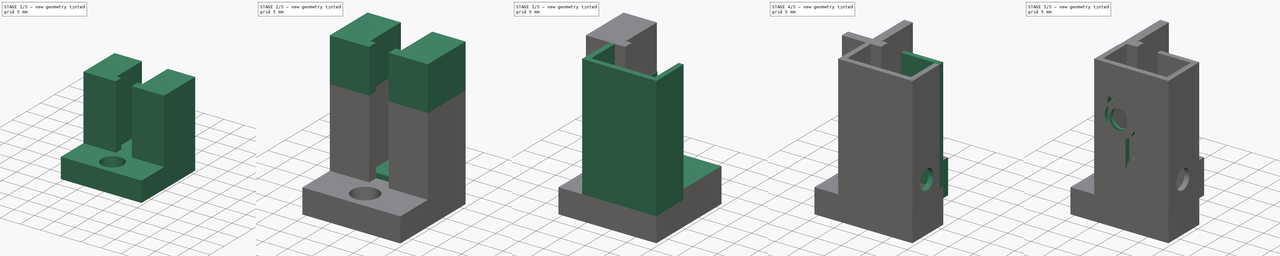
[diagram: build sequence overview — one tinted view per stage of 5, left to right]
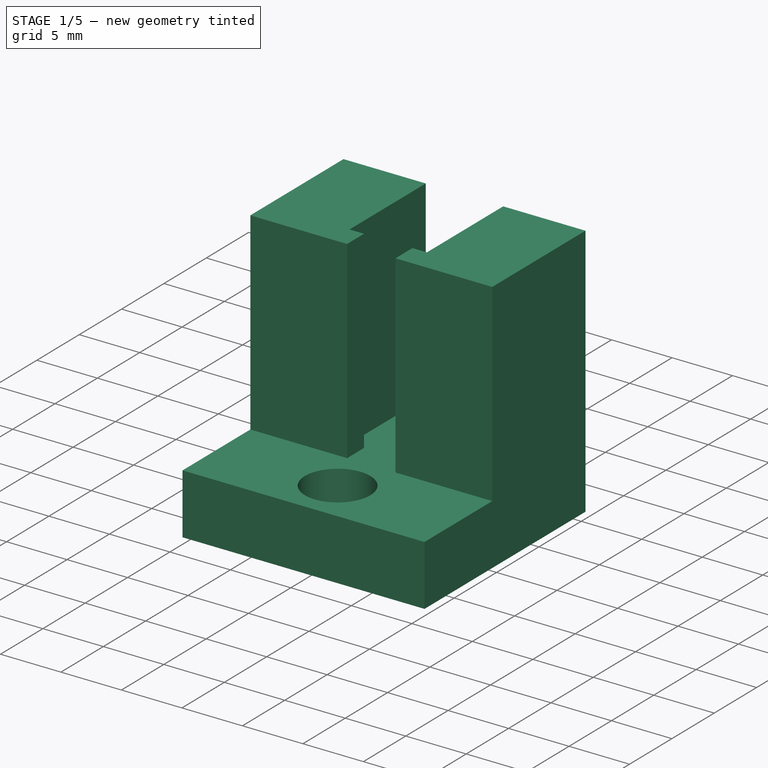
[diagram: stage 1 of 5 — iso view after this stage's code; geometry added in this stage tinted green]
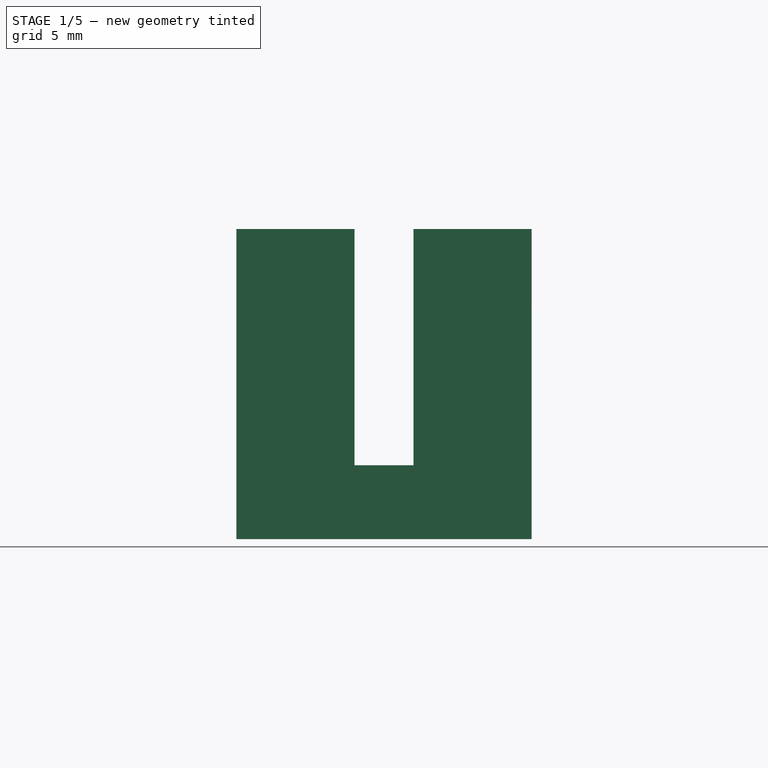
[diagram: stage 1 of 5 — front view after this stage's code; geometry added in this stage tinted green]
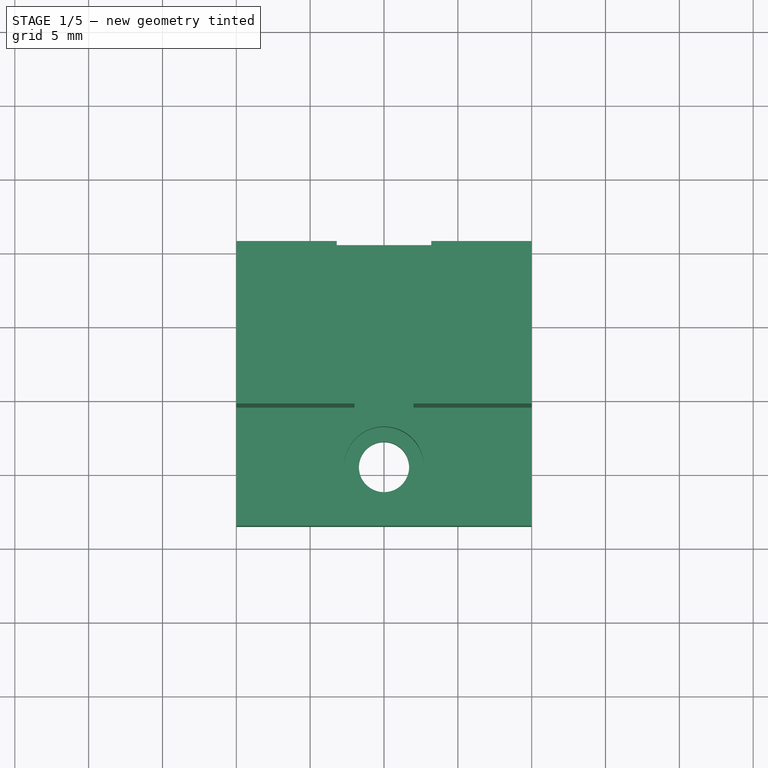
[diagram: stage 1 of 5 — top view after this stage's code; geometry added in this stage tinted green]
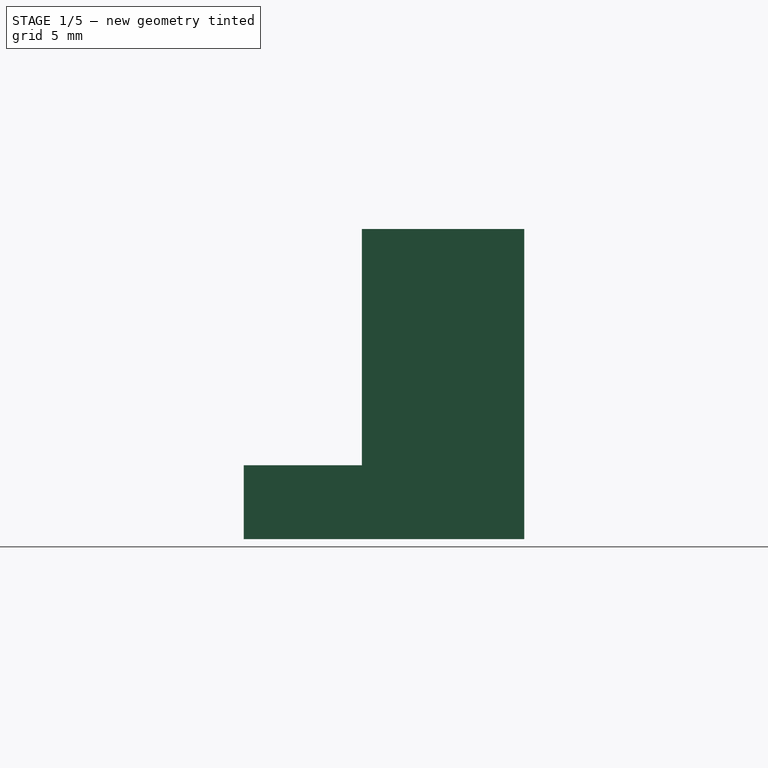
[diagram: stage 1 of 5 — right view after this stage's code; geometry added in this stage tinted green]
FCSTD DOCUMENT  (FreeCAD 0.18.4R)
Label: end_course_actuator_XXX
License: All rights reserved
LicenseURL: http://en.wikipedia.org/wiki/All_rights_reserved
objects: Sketcher::SketchObject×21, PartDesign::Pocket×15, PartDesign::Pad×13, PartDesign::Body×1
note: 78 computed .brp shape members not serialized (recipe doc carries the construction recipe); baked Part::Feature solids carry a one-line shape summary decoded from their .brp

FEATURE [Sketcher::SketchObject] Sketch
  MapMode = 5
  Support = -> [XY_Plane]
  sketch-geometry (4):
    g0: LineSegment StartX=-10 StartY=-5.5 StartZ=0 EndX=10 EndY=-5.5 EndZ=0
    g1: LineSegment StartX=10 StartY=-5.5 StartZ=0 EndX=10 EndY=5.5 EndZ=0
    g2: LineSegment StartX=10 StartY=5.5 StartZ=0 EndX=-10 EndY=5.5 EndZ=0
    g3: LineSegment StartX=-10 StartY=5.5 StartZ=0 EndX=-10 EndY=-5.5 EndZ=0
  constraints (10):
    c: Coincident(g0,g1)
    c: Coincident(g1,g2)
    c: Coincident(g2,g3)
    c: Coincident(g3,g0)
    c: Horizontal(g0)
    c: Vertical(g1)
    c: DistanceX(g2,g2) = 20
    c: DistanceY(g1,g1) = 11
    c: Symmetric(g2,g1,g-2)
    c: Symmetric(g0,g2,g-1)
FEATURE [PartDesign::Pad] Pad
  Length = 21
  Length2 = 100
  Profile = -> Sketch
  Type = 0
FEATURE [Sketcher::SketchObject] Sketch001
  ExternalGeometry = -> [Pad]
  MapMode = 5
  Placement = pos=(0,-5.5,0) rot=(1,0,0;1.5708rad)
  Support = -> [Pad]
  sketch-geometry (4):
    g0: LineSegment StartX=-10 StartY=0 StartZ=0 EndX=10 EndY=0 EndZ=0
    g1: LineSegment StartX=10 StartY=0 StartZ=0 EndX=10 EndY=5 EndZ=0
    g2: LineSegment StartX=10 StartY=5 StartZ=0 EndX=-10 EndY=5 EndZ=0
    g3: LineSegment StartX=-10 StartY=5 StartZ=0 EndX=-10 EndY=0 EndZ=0
  constraints (11):
    c: Coincident(g0,g1)
    c: Coincident(g1,g2)
    c: Coincident(g2,g3)
    c: Coincident(g3,g0)
    c: Horizontal(g0)
    c: Horizontal(g2)
    c: Vertical(g1)
    c: Vertical(g3)
    c: Coincident(g0,g-3)
    c: PointOnObject(g1,g-4)
    c: DistanceY(g1,g1) = 5
FEATURE [PartDesign::Pad] Pad001
  BaseFeature = -> Pad
  Length = 8
  Length2 = 100
  Profile = -> Sketch001
  Type = 0
FEATURE [Sketcher::SketchObject] Sketch002
  ExternalGeometry = -> [Pad001]
  MapMode = 5
  Placement = pos=(0,0,21) rot=(0,0,1;0rad)
  Support = -> [Pad001]
  sketch-geometry (4):
    g0: LineSegment StartX=-3.2 StartY=-3.5 StartZ=0 EndX=3.2 EndY=-3.5 EndZ=0
    g1: LineSegment StartX=3.2 StartY=-3.5 StartZ=0 EndX=3.2 EndY=6.20104 EndZ=0
    g2: LineSegment StartX=3.2 StartY=6.20104 StartZ=0 EndX=-3.2 EndY=6.20104 EndZ=0
    g3: LineSegment StartX=-3.2 StartY=6.20104 StartZ=0 EndX=-3.2 EndY=-3.5 EndZ=0
  constraints (10):
    c: Coincident(g0,g1)
    c: Coincident(g1,g2)
    c: Coincident(g2,g3)
    c: Coincident(g3,g0)
    c: Horizontal(g0)
    c: Vertical(g1)
    c: Vertical(g3)
    c: DistanceX(g2,g2) = 6.4
    c: Symmetric(g2,g1,g-2)
    c: Distance(g0,g-3) = 2
FEATURE [PartDesign::Pocket] Pocket
  BaseFeature = -> Pad001
  Length = 16
  Length2 = 100
  Profile = -> Sketch002
  Type = 0
FEATURE [Sketcher::SketchObject] Sketch003
  MapMode = 5
  Placement = pos=(0,0,21) rot=(0,0,1;0rad)
  Support = -> [Pocket]
  sketch-geometry (4):
    g0: LineSegment StartX=-2 StartY=-5.52825 StartZ=0 EndX=2 EndY=-5.52825 EndZ=0
    g1: LineSegment StartX=2 StartY=-5.52825 StartZ=0 EndX=2 EndY=-3.43701 EndZ=0
    g2: LineSegment StartX=2 StartY=-3.43701 StartZ=0 EndX=-2 EndY=-3.43701 EndZ=0
    g3: LineSegment StartX=-2 StartY=-3.43701 StartZ=0 EndX=-2 EndY=-5.52825 EndZ=0
  constraints (9):
    c: Coincident(g0,g1)
    c: Coincident(g1,g2)
    c: Coincident(g2,g3)
    c: Coincident(g3,g0)
    c: Horizontal(g0)
    c: Vertical(g1)
    c: Vertical(g3)
    c: Symmetric(g2,g1,g-2)
    c: DistanceX(g2,g2) = 4
FEATURE [PartDesign::Pocket] Pocket001
  BaseFeature = -> Pocket
  Length = 16
  Length2 = 100
  Profile = -> Sketch003
  Type = 0
FEATURE [Sketcher::SketchObject] Sketch005
  MapMode = 5
  Placement = pos=(0,1.1e-15,5) rot=(0,0,1;0rad)
  Support = -> [Pocket001]
  sketch-geometry (1):
    g0: Circle CenterX=0 CenterY=-9.47407 CenterZ=0 NormalX=0 NormalY=0 NormalZ=1 AngleXU=0 Radius=2.7
  constraints (2):
    c: PointOnObject(g0,g-2)
    c: Radius(g0) = 2.7
FEATURE [PartDesign::Pocket] Pocket002
  BaseFeature = -> Pocket001
  Length = 3
  Length2 = 100
  Profile = -> Sketch005
  Type = 0
FEATURE [Sketcher::SketchObject] Sketch006
  ExternalGeometry = -> [Pocket002]
  MapMode = 5
  Placement = pos=(2e-16,4e-16,2) rot=(0,0,1;0rad)
  Support = -> [Pocket002]
  sketch-geometry (1):
    g0: Circle CenterX=-6e-16 CenterY=-9.47407 CenterZ=0 NormalX=0 NormalY=0 NormalZ=1 AngleXU=0 Radius=1.7
  constraints (2):
    c: Coincident(g0,g-3)
    c: Radius(g0) = 1.7
FEATURE [PartDesign::Pocket] Pocket003
  BaseFeature = -> Pocket002
  Length = 15
  Length2 = 100
  Profile = -> Sketch006
  Type = 0
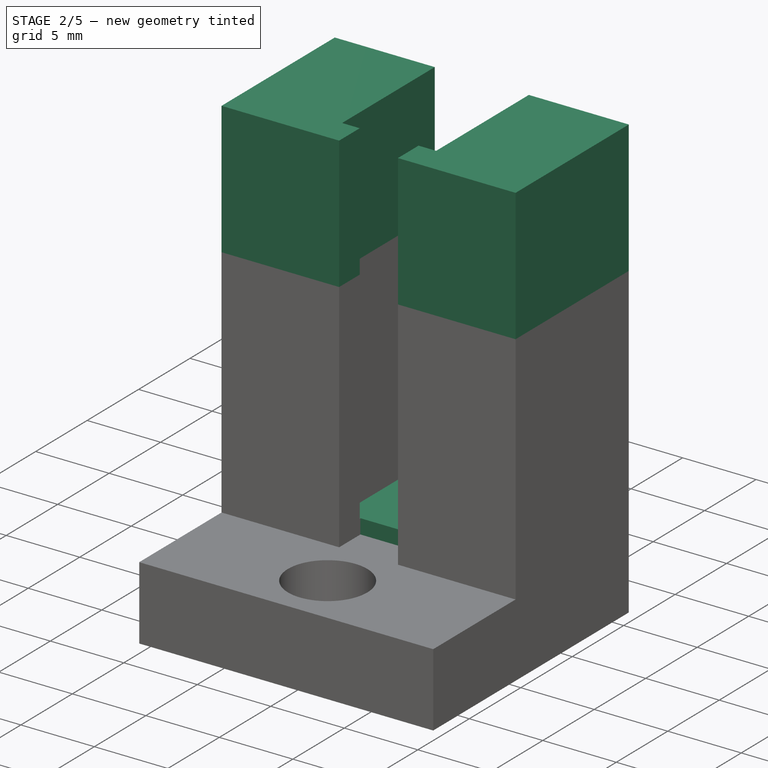
[diagram: stage 2 of 5 — iso view after this stage's code; geometry added in this stage tinted green]
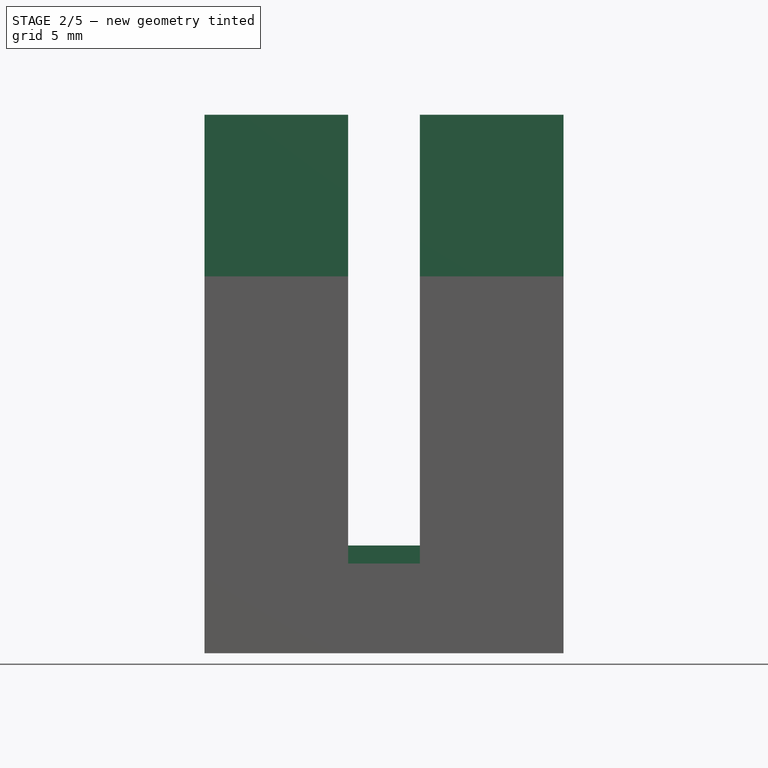
[diagram: stage 2 of 5 — front view after this stage's code; geometry added in this stage tinted green]
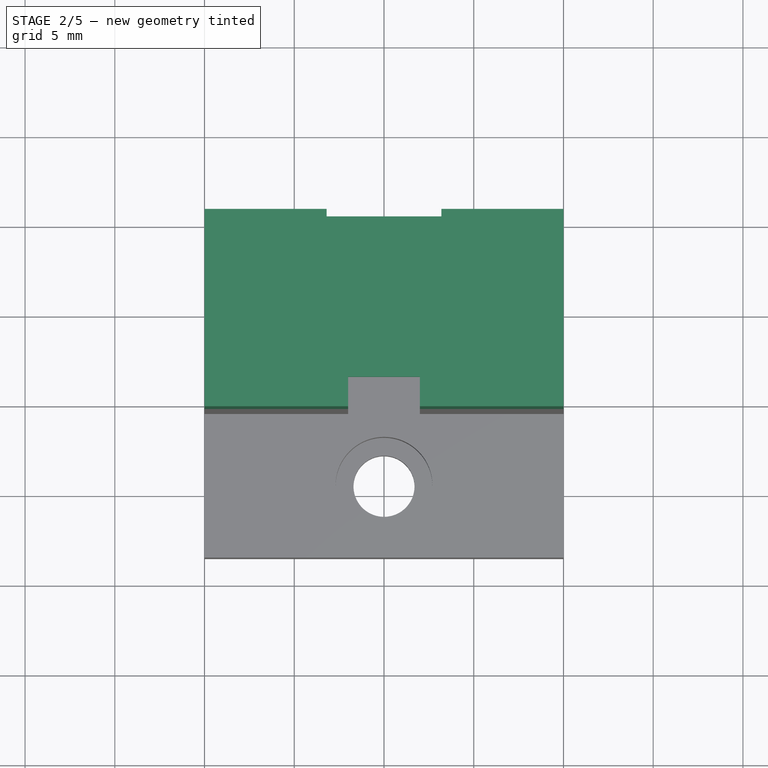
[diagram: stage 2 of 5 — top view after this stage's code; geometry added in this stage tinted green]
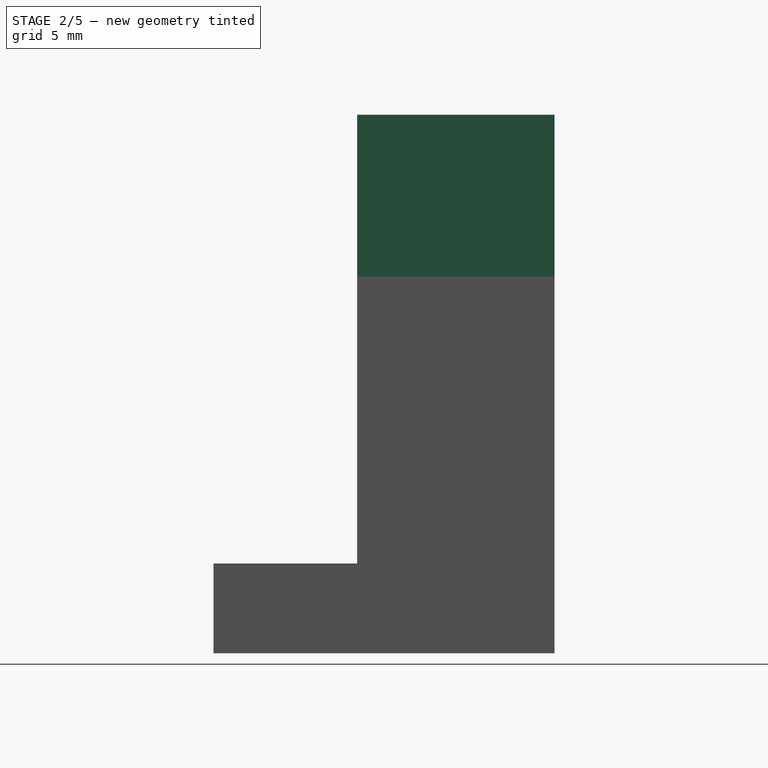
[diagram: stage 2 of 5 — right view after this stage's code; geometry added in this stage tinted green]
FEATURE [PartDesign::Pad] Pad002
  BaseFeature = -> Pocket003
  Length = 1
  Length2 = 100
  Profile = -> Pocket003 [Face21]
  Type = 0
FEATURE [PartDesign::Pad] Pad003
  BaseFeature = -> Pad002
  Length = 1
  Length2 = 100
  Profile = -> Pad002 [Face3]
  Type = 0
FEATURE [PartDesign::Pad] Pad004
  BaseFeature = -> Pad003
  Length = 8
  Length2 = 100
  Profile = -> Pad003 [Face22]
  Type = 0
FEATURE [PartDesign::Pad] Pad005
  BaseFeature = -> Pad004
  Length = 8
  Length2 = 100
  Profile = -> Pad004 [Face11]
  Type = 0
FEATURE [PartDesign::Pad] Pad006
  BaseFeature = -> Pad005
  Length = 1
  Length2 = 100
  Profile = -> Pad005 [Face40]
  Type = 0
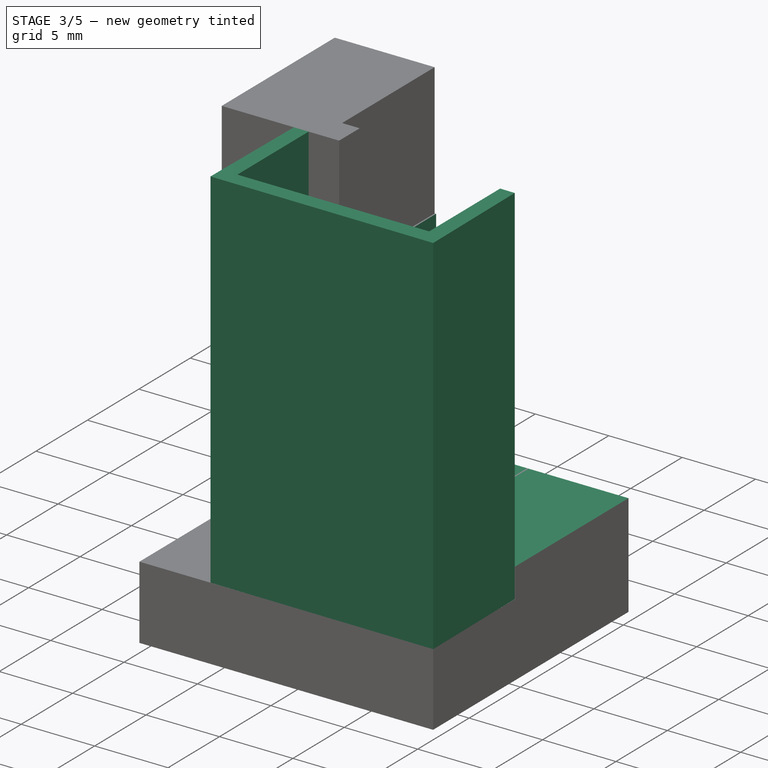
[diagram: stage 3 of 5 — iso view after this stage's code; geometry added in this stage tinted green]
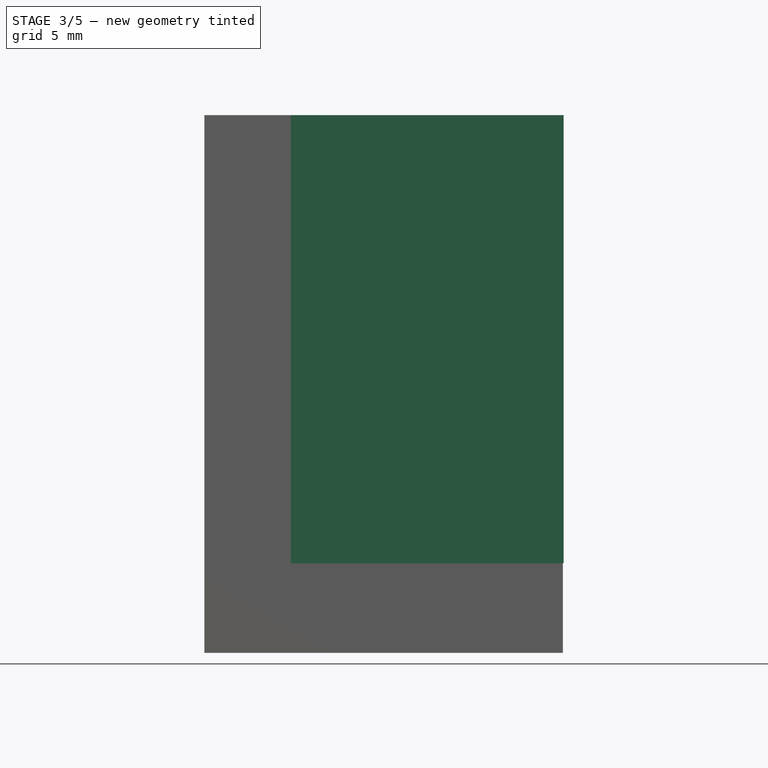
[diagram: stage 3 of 5 — front view after this stage's code; geometry added in this stage tinted green]
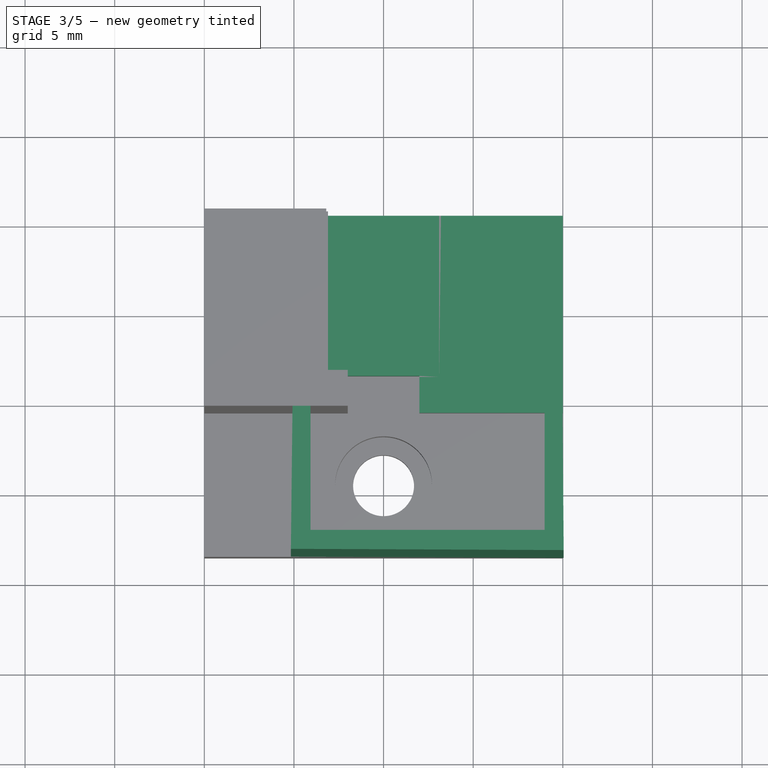
[diagram: stage 3 of 5 — top view after this stage's code; geometry added in this stage tinted green]
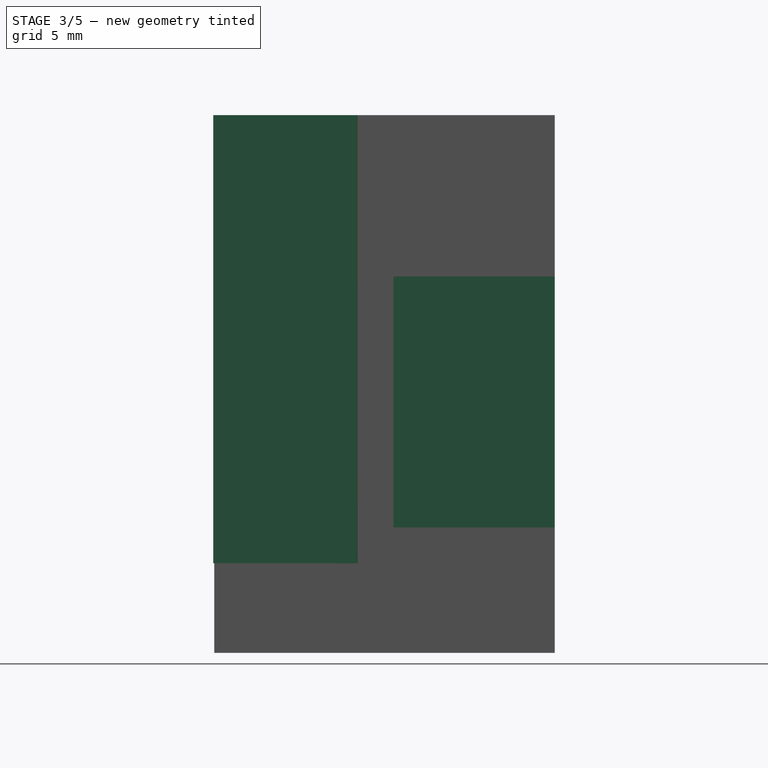
[diagram: stage 3 of 5 — right view after this stage's code; geometry added in this stage tinted green]
FEATURE [PartDesign::Pad] Pad007
  BaseFeature = -> Pad006
  Length = 1
  Length2 = 100
  Profile = -> Pad006 [Face33]
  Type = 0
FEATURE [PartDesign::Pad] Pad008
  BaseFeature = -> Pad007
  Length = 0.1
  Length2 = 100
  Profile = -> Pad007 [Face27]
  Type = 0
FEATURE [PartDesign::Pad] Pad009
  BaseFeature = -> Pad008
  Length = 0.1
  Length2 = 100
  Profile = -> Pad008 [Face24]
  Type = 0
FEATURE [Sketcher::SketchObject] Sketch009
  MapMode = 5
  Placement = pos=(0,0,30) rot=(0,0,1;0rad)
  sketch-geometry (4):
    g0: LineSegment StartX=1.16209 StartY=-5.81722 StartZ=0 EndX=12.9273 EndY=-5.81722 EndZ=0
    g1: LineSegment StartX=12.9273 StartY=-5.81722 StartZ=0 EndX=12.9273 EndY=6.28819 EndZ=0
    g2: LineSegment StartX=12.9273 StartY=6.28819 StartZ=0 EndX=1.16209 EndY=6.28819 EndZ=0
    g3: LineSegment StartX=1.16209 StartY=6.28819 StartZ=0 EndX=1.16209 EndY=-5.81722 EndZ=0
  constraints (8):
    c: Coincident(g0,g1)
    c: Coincident(g1,g2)
    c: Coincident(g2,g3)
    c: Coincident(g3,g0)
    c: Horizontal(g0)
    c: Horizontal(g2)
    c: Vertical(g1)
    c: Vertical(g3)
FEATURE [PartDesign::Pocket] Pocket007
  BaseFeature = -> Pad009
  Length = 23
  Length2 = 100
  Profile = -> Sketch009
  Type = 0
FEATURE [Sketcher::SketchObject] Sketch010
  MapMode = 5
  Placement = pos=(-4,0,0) rot=(0.57735,-0.57735,-0.57735;2.0944rad)
  sketch-geometry (4):
    g0: LineSegment StartX=5.5 StartY=5 StartZ=0 EndX=13.5 EndY=5 EndZ=0
    g1: LineSegment StartX=13.5 StartY=5 StartZ=0 EndX=13.5 EndY=0 EndZ=0
    g2: LineSegment StartX=13.5 StartY=0 StartZ=0 EndX=5.5 EndY=0 EndZ=0
    g3: LineSegment StartX=5.5 StartY=0 StartZ=0 EndX=5.5 EndY=5 EndZ=0
  constraints (9):
    c: Coincident(g0,g1)
    c: Coincident(g1,g2)
    c: Coincident(g2,g3)
    c: Coincident(g3,g0)
    c: Horizontal(g0)
    c: Horizontal(g2)
    c: Vertical(g1)
    c: Vertical(g3)
    c: PointOnObject(g1,g-1)
FEATURE [PartDesign::Pad] Pad010
  BaseFeature = -> Pocket007
  Length = 6
  Length2 = 100
  Profile = -> Sketch010
  Type = 0
FEATURE [Sketcher::SketchObject] Sketch011
  ExternalGeometry = -> [Pad010]
  MapMode = 5
  Placement = pos=(0,1.1e-15,5) rot=(0,0,1;0rad)
  Support = -> [Pad010]
  sketch-geometry (8):
    g0: LineSegment StartX=-5.08025 StartY=-5.43069 StartZ=0 EndX=-5.17057 EndY=-13.487 EndZ=0
    g1: LineSegment StartX=-5.17057 StartY=-13.487 StartZ=0 EndX=10.0469 EndY=-13.5563 EndZ=0
    g2: LineSegment StartX=-4.08025 StartY=-12.4307 StartZ=0 EndX=-4.08025 EndY=-5.43069 EndZ=0
    g3: LineSegment StartX=-5.08025 StartY=-5.43069 StartZ=0 EndX=-4.08025 EndY=-5.43069 EndZ=0
    g4: LineSegment StartX=-4.08025 StartY=-12.4307 StartZ=0 EndX=8.98279 EndY=-12.4307 EndZ=0
    g5: LineSegment StartX=8.98279 StartY=-12.4307 StartZ=0 EndX=8.98279 EndY=-5.52736 EndZ=0
    g6: LineSegment StartX=9.98279 StartY=-5.53926 StartZ=0 EndX=10.0469 EndY=-13.5563 EndZ=0
    g7: LineSegment StartX=8.98279 StartY=-5.52736 StartZ=0 EndX=9.98279 EndY=-5.53926 EndZ=0
  constraints (13):
    c: Coincident(g1,g0)
    c: Vertical(g2)
    c: Coincident(g3,g0)
    c: Coincident(g3,g2)
    c: Coincident(g4,g2)
    c: Horizontal(g4)
    c: Coincident(g5,g4)
    c: Vertical(g5)
    c: Coincident(g6,g1)
    c: Coincident(g7,g5)
    c: Coincident(g7,g6)
    c: DistanceX(g7,g7) = 1
    c: Distance(g0,g2) = 1
FEATURE [PartDesign::Pad] Pad011
  BaseFeature = -> Pad010
  Length = 25
  Length2 = 100
  Profile = -> Sketch011
  Type = 0
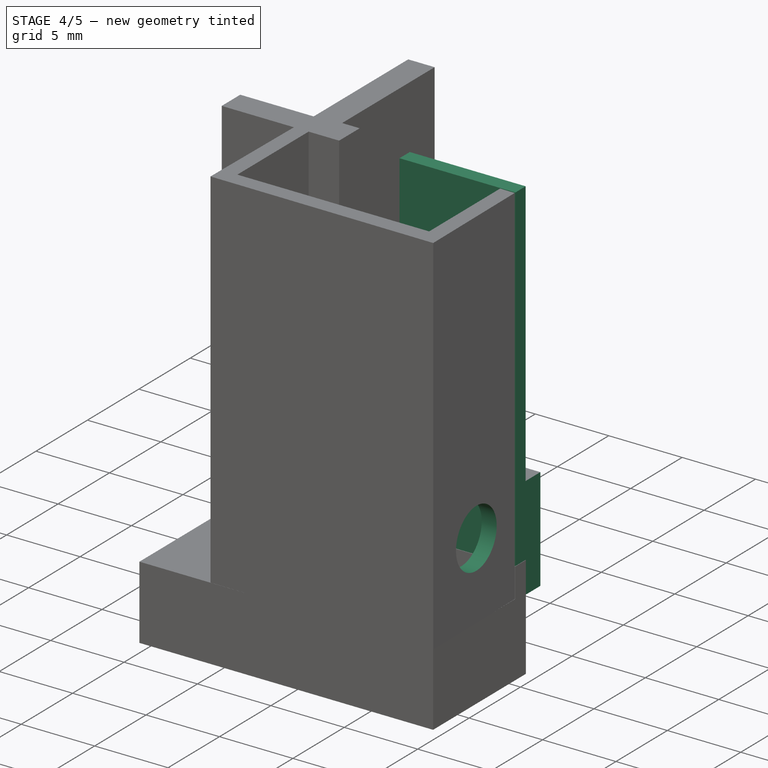
[diagram: stage 4 of 5 — iso view after this stage's code; geometry added in this stage tinted green]
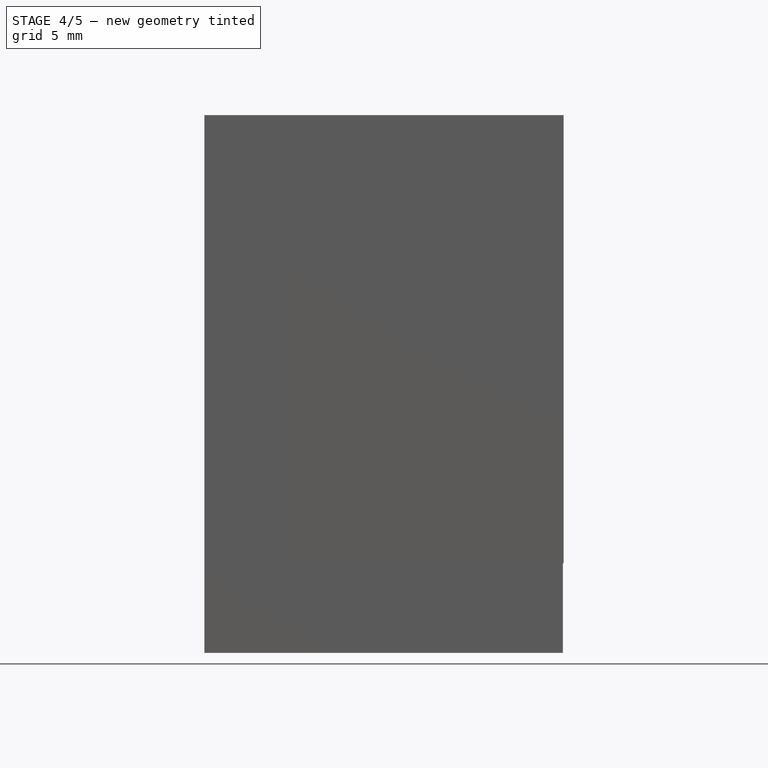
[diagram: stage 4 of 5 — front view after this stage's code; geometry added in this stage tinted green]
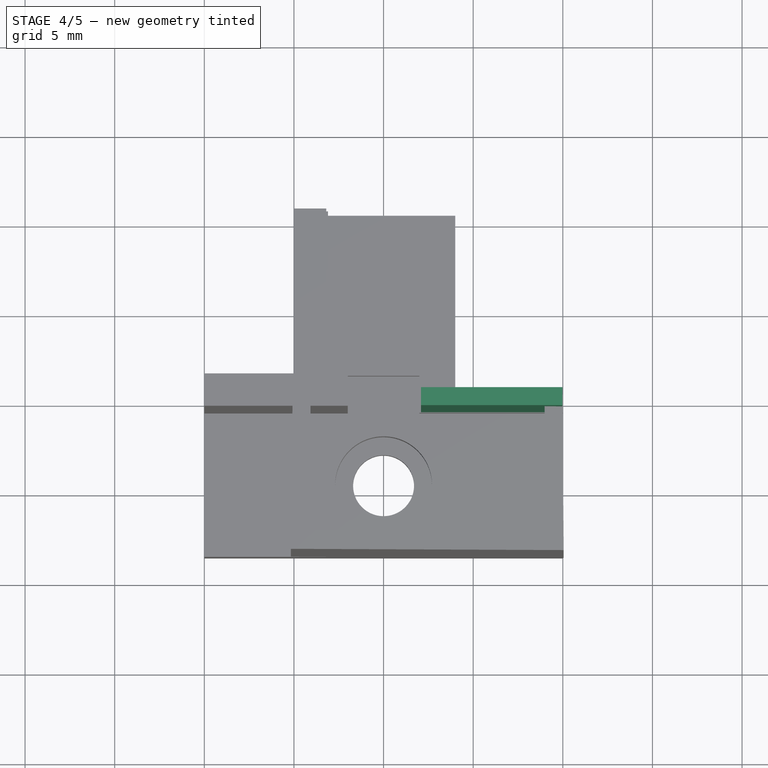
[diagram: stage 4 of 5 — top view after this stage's code; geometry added in this stage tinted green]
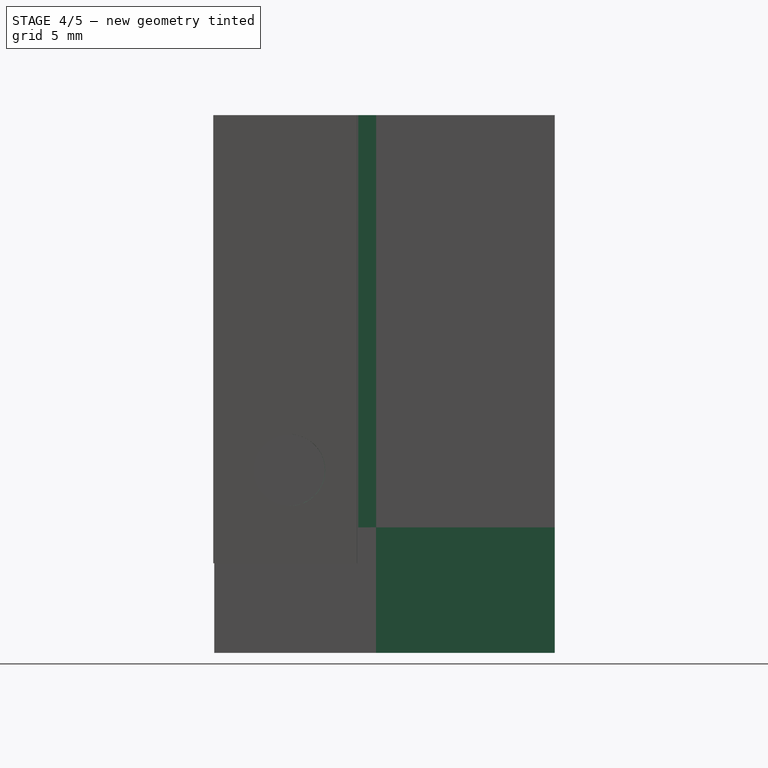
[diagram: stage 4 of 5 — right view after this stage's code; geometry added in this stage tinted green]
FEATURE [Sketcher::SketchObject] Sketch012
  MapMode = 5
  Placement = pos=(0,0,7) rot=(0,0,1;0rad)
  Support = -> [Pad011]
  sketch-geometry (4):
    g0: LineSegment StartX=2.08782 StartY=-5.46649 StartZ=0 EndX=9.97596 EndY=-5.46649 EndZ=0
    g1: LineSegment StartX=9.97596 StartY=-5.46649 StartZ=0 EndX=9.97596 EndY=-4.46649 EndZ=0
    g2: LineSegment StartX=9.97596 StartY=-4.46649 StartZ=0 EndX=2.08782 EndY=-4.46649 EndZ=0
    g3: LineSegment StartX=2.08782 StartY=-4.46649 StartZ=0 EndX=2.08782 EndY=-5.46649 EndZ=0
  constraints (9):
    c: Coincident(g0,g1)
    c: Coincident(g1,g2)
    c: Coincident(g2,g3)
    c: Coincident(g3,g0)
    c: Horizontal(g0)
    c: Horizontal(g2)
    c: Vertical(g1)
    c: Vertical(g3)
    c: DistanceY(g1,g1) = 1
FEATURE [PartDesign::Pad] Pad012
  BaseFeature = -> Pad011
  Length = 23
  Length2 = 100
  Profile = -> Sketch012
  Type = 0
FEATURE [Sketcher::SketchObject] Sketch014
  MapMode = 5
  Placement = pos=(9.93786,0.0794708,0) rot=(0.574272,0.578883,0.578883;2.09902rad)
  Support = -> [Pad012]
  sketch-geometry (1):
    g0: Circle CenterX=-9.39391 CenterY=10.1964 CenterZ=0 NormalX=0 NormalY=0 NormalZ=1 AngleXU=0 Radius=2
  constraints (1):
    c: Radius(g0) = 2
FEATURE [PartDesign::Pocket] Pocket008
  BaseFeature = -> Pad012
  Length = 5
  Length2 = 100
  Profile = -> Sketch014
  Type = 0
FEATURE [Sketcher::SketchObject] Sketch016
  MapMode = 5
  Placement = pos=(-10,0,0) rot=(0.57735,-0.57735,-0.57735;2.0944rad)
  sketch-geometry (4):
    g0: LineSegment StartX=-5.73593 StartY=0 StartZ=0 EndX=3.69576 EndY=0 EndZ=0
    g1: LineSegment StartX=3.69576 StartY=0 StartZ=0 EndX=3.69576 EndY=30.0195 EndZ=0
    g2: LineSegment StartX=3.69576 StartY=30.0195 StartZ=0 EndX=-5.73593 EndY=30.0195 EndZ=0
    g3: LineSegment StartX=-5.73593 StartY=30.0195 StartZ=0 EndX=-5.73593 EndY=0 EndZ=0
  constraints (9):
    c: Coincident(g0,g1)
    c: Coincident(g1,g2)
    c: Coincident(g2,g3)
    c: Coincident(g3,g0)
    c: Horizontal(g0)
    c: Horizontal(g2)
    c: Vertical(g1)
    c: Vertical(g3)
    c: PointOnObject(g0,g-1)
FEATURE [PartDesign::Pocket] Pocket010
  BaseFeature = -> Pocket008
  Length = 5
  Length2 = 100
  Profile = -> Sketch016
  Type = 0
FEATURE [Sketcher::SketchObject] Sketch019
  MapMode = 5
  Placement = pos=(10,0,0) rot=(0.57735,0.57735,0.57735;2.0944rad)
  sketch-geometry (4):
    g0: LineSegment StartX=-4.47699 StartY=-0.188614 StartZ=0 EndX=5.6259 EndY=-0.188614 EndZ=0
    g1: LineSegment StartX=5.6259 StartY=-0.188614 StartZ=0 EndX=5.6259 EndY=7.00691 EndZ=0
    g2: LineSegment StartX=5.6259 StartY=7.00691 StartZ=0 EndX=-4.47699 EndY=7.00691 EndZ=0
    g3: LineSegment StartX=-4.47699 StartY=7.00691 StartZ=0 EndX=-4.47699 EndY=-0.188614 EndZ=0
  constraints (8):
    c: Coincident(g0,g1)
    c: Coincident(g1,g2)
    c: Coincident(g2,g3)
    c: Coincident(g3,g0)
    c: Horizontal(g0)
    c: Horizontal(g2)
    c: Vertical(g1)
    c: Vertical(g3)
FEATURE [PartDesign::Pocket] Pocket012
  BaseFeature = -> Pocket010
  Length = 6
  Length2 = 100
  Profile = -> Sketch019
  Type = 0
FEATURE [Sketcher::SketchObject] Sketch020
  MapMode = 5
  Placement = pos=(2e-16,4e-16,2) rot=(0,0,1;0rad)
  sketch-geometry (1):
    g0: Circle CenterX=-0.021918 CenterY=17.9283 CenterZ=0 NormalX=0 NormalY=0 NormalZ=1 AngleXU=0 Radius=4.82643
FEATURE [PartDesign::Pocket] Pocket014
  BaseFeature = -> Pocket012
  Length = 0.5
  Length2 = 100
  Profile = -> Sketch020
  Type = 0
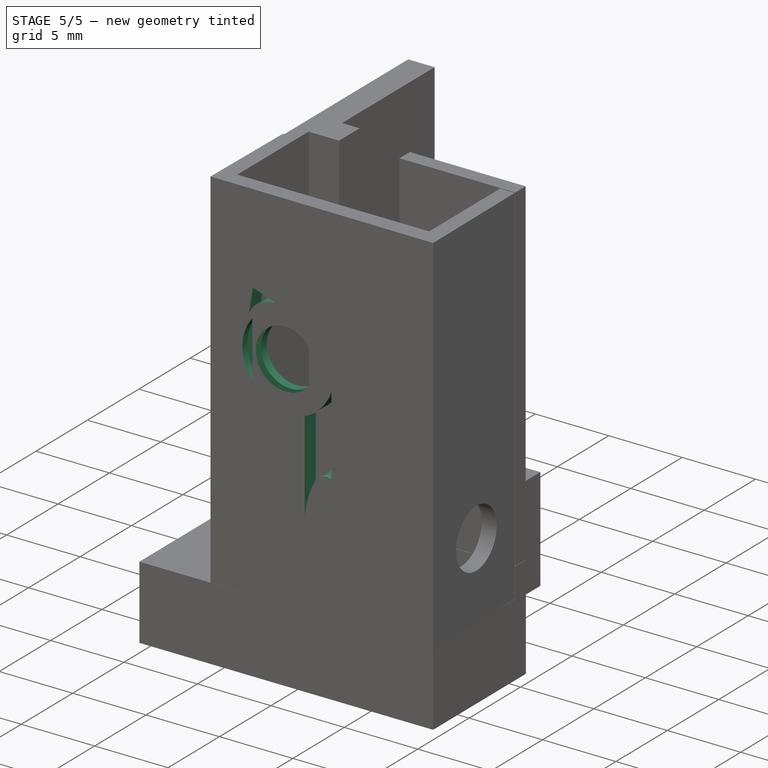
[diagram: stage 5 of 5 — iso view after this stage's code; geometry added in this stage tinted green]
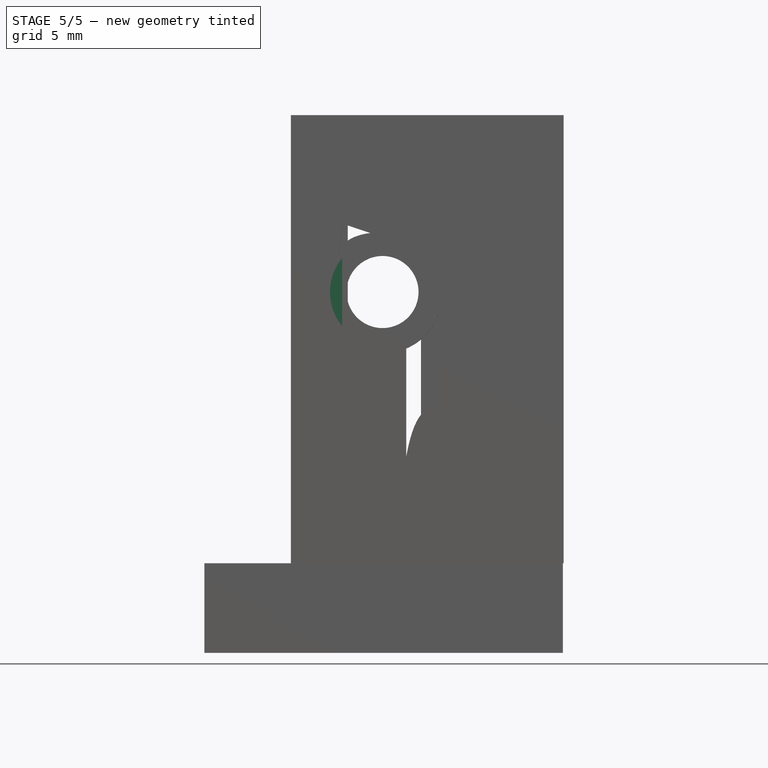
[diagram: stage 5 of 5 — front view after this stage's code; geometry added in this stage tinted green]
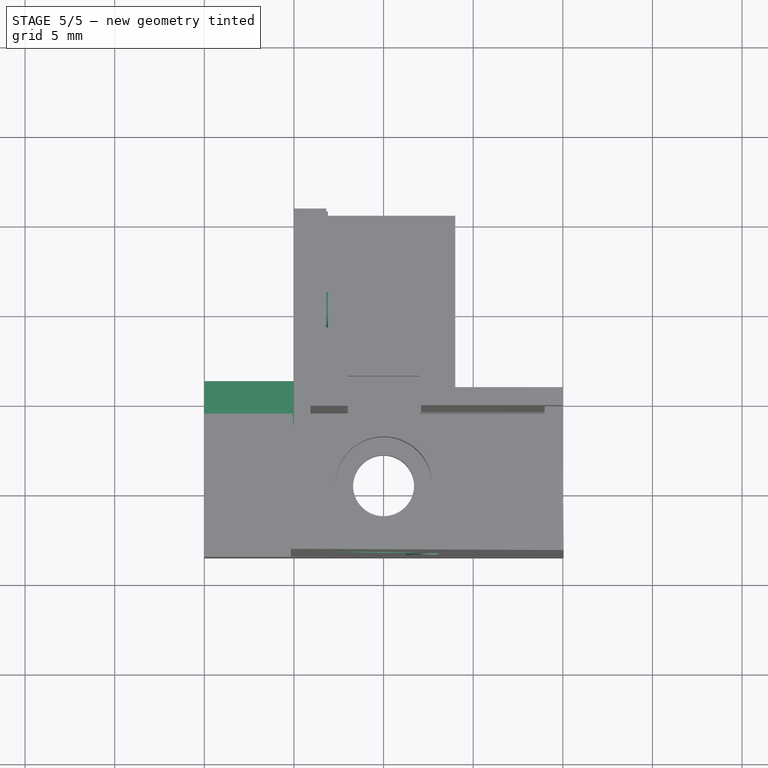
[diagram: stage 5 of 5 — top view after this stage's code; geometry added in this stage tinted green]
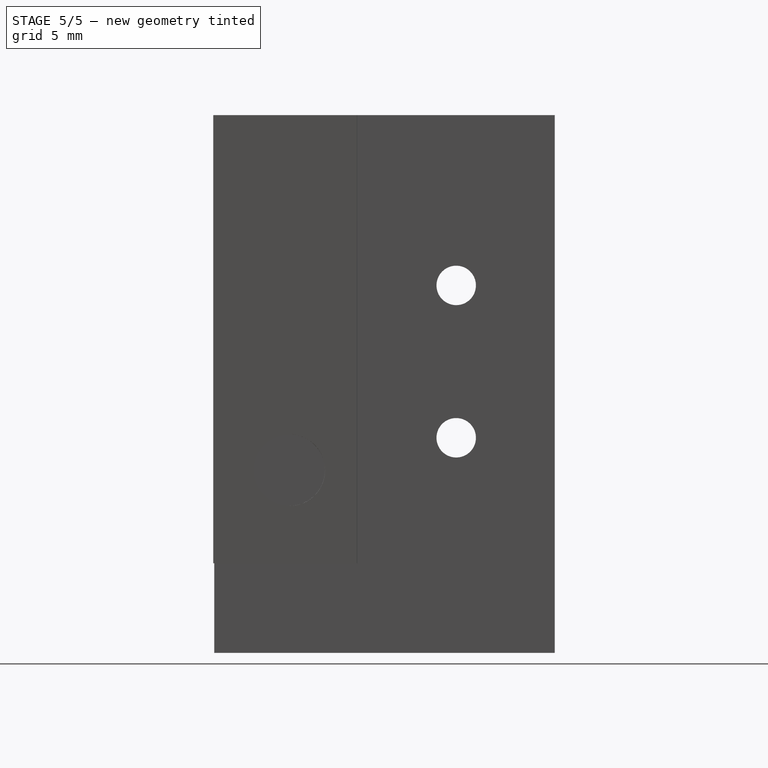
[diagram: stage 5 of 5 — right view after this stage's code; geometry added in this stage tinted green]
FEATURE [Sketcher::SketchObject] Sketch022
  MapMode = 5
  Placement = pos=(2e-16,4e-16,2) rot=(0,0,1;0rad)
  Support = -> [Pocket014]
  sketch-geometry (8):
    g0: Circle [constr] CenterX=-1.97565 CenterY=22.5466 CenterZ=0 NormalX=0 NormalY=0 NormalZ=1 AngleXU=0 Radius=0.4
    g1: Circle [constr] CenterX=-3.68594 CenterY=22.0058 CenterZ=0 NormalX=0 NormalY=0 NormalZ=1 AngleXU=0 Radius=0.4
    g2: Circle [constr] CenterX=-4.3318 CenterY=20.5705 CenterZ=0 NormalX=0 NormalY=0 NormalZ=1 AngleXU=0 Radius=0.4
    g3: BSplineCurve PolesCount=3 KnotsCount=2 Degree=2 IsPeriodic=0
    g4: GeomPoint [constr] X=-1.97565 Y=22.5466 Z=0
    g5: GeomPoint [constr] X=-4.3318 Y=20.5705 Z=0
    g6: LineSegment StartX=-4.3318 StartY=20.5705 StartZ=0 EndX=-4.13671 EndY=22.6278 EndZ=0
    g7: LineSegment StartX=-1.97565 StartY=22.5466 StartZ=0 EndX=-4.13671 EndY=22.6278 EndZ=0
  constraints (11):
    c: Radius(g0) = 0.4
    c: Equal(g0,g1)
    c: Equal(g0,g2)
    c: InternalAlignment(g0,g3)
    c: InternalAlignment(g1,g3)
    c: InternalAlignment(g2,g3)
    c: InternalAlignment(g4,g3)
    c: InternalAlignment(g5,g3)
    c: Coincident(g6,g3)
    c: Coincident(g7,g3)
    c: Coincident(g7,g6)
FEATURE [PartDesign::Pocket] Pocket015
  BaseFeature = -> Pocket014
  Length = 2
  Length2 = 100
  Profile = -> Sketch022
  Type = 0
FEATURE [Sketcher::SketchObject] CopySketch024
  Placement = pos=(-5,0,0) rot=(0.57735,-0.57735,-0.57735;2.0944rad)
  sketch-geometry (2):
    g0: Circle CenterX=0 CenterY=12 CenterZ=0 NormalX=0 NormalY=0 NormalZ=1 AngleXU=0 Radius=1.1
    g1: Circle CenterX=0 CenterY=20.5 CenterZ=0 NormalX=0 NormalY=0 NormalZ=1 AngleXU=0 Radius=1.1
  constraints (6):
    c: PointOnObject(g0,g-2)
    c: PointOnObject(g1,g-2)
    c: DistanceY(g-1,g0) = 12
    c: DistanceY(g-1,g1) = 20.5
    c: Radius(g1) = 1.1
    c: Radius(g0) = 1.1
FEATURE [PartDesign::Pocket] Pocket017
  BaseFeature = -> Pocket015
  Length = 3
  Length2 = 100
  Profile = -> CopySketch024
  Type = 0
FEATURE [Sketcher::SketchObject] Sketch025
  ExternalGeometry = -> [Pocket017]
  MapMode = 5
  Placement = pos=(-5,0,0) rot=(0.57735,-0.57735,-0.57735;2.0944rad)
  Support = -> [Pocket017]
  sketch-geometry (2):
    g0: Circle CenterX=0 CenterY=20.5 CenterZ=0 NormalX=0 NormalY=0 NormalZ=1 AngleXU=0 Radius=1.7
    g1: Circle CenterX=0 CenterY=12 CenterZ=0 NormalX=0 NormalY=0 NormalZ=1 AngleXU=0 Radius=1.7
  constraints (2):
    c: Radius(g1) = 1.7
    c: Radius(g0) = 1.7
FEATURE [PartDesign::Pocket] Pocket018
  BaseFeature = -> Pocket017
  Length = 1
  Length2 = 100
  Profile = -> Sketch025
  Type = 0
FEATURE [Sketcher::SketchObject] Sketch026
  MapMode = 5
  Placement = pos=(-0.0615351,-13.5102,3e-15) rot=(0.999995,-0.002277,-0.002277;1.5708rad)
  Support = -> [Pocket018]
  sketch-geometry (23):
    g0: Circle CenterX=0 CenterY=20.1308 CenterZ=0 NormalX=0 NormalY=0 NormalZ=1 AngleXU=0 Radius=2.01029
    g1: Circle [constr] CenterX=3.15934 CenterY=18.982 CenterZ=0 NormalX=0 NormalY=0 NormalZ=1 AngleXU=0 Radius=0.4
    g2: Circle [constr] CenterX=2.63743 CenterY=17.5415 CenterZ=0 NormalX=0 NormalY=0 NormalZ=1 AngleXU=0 Radius=0.4
    g3: Circle [constr] CenterX=1.32344 CenterY=16.9778 CenterZ=0 NormalX=0 NormalY=0 NormalZ=1 AngleXU=0 Radius=0.4
    g4: BSplineCurve PolesCount=3 KnotsCount=2 Degree=2 IsPeriodic=0
    g5: GeomPoint [constr] X=3.15934 Y=18.982 Z=0
    g6: GeomPoint [constr] X=1.32344 Y=16.9778 Z=0
    g7: LineSegment StartX=3.15934 StartY=18.982 StartZ=0 EndX=3.15934 EndY=13.575 EndZ=0
    g8: LineSegment StartX=1.32344 StartY=16.9778 StartZ=0 EndX=1.32344 EndY=10.9319 EndZ=0
    g9: Circle [constr] CenterX=3.15934 CenterY=13.575 CenterZ=0 NormalX=0 NormalY=0 NormalZ=1 AngleXU=0 Radius=0.2
    g10: Circle [constr] CenterX=1.88615 CenterY=14.0909 CenterZ=0 NormalX=0 NormalY=0 NormalZ=1 AngleXU=0 Radius=0.2
    g11: Circle [constr] CenterX=1.32344 CenterY=10.9319 CenterZ=0 NormalX=0 NormalY=0 NormalZ=1 AngleXU=0 Radius=0.2
    g12: BSplineCurve PolesCount=3 KnotsCount=2 Degree=2 IsPeriodic=0
    g13: GeomPoint [constr] X=3.15934 Y=13.575 Z=0
    g14: GeomPoint [constr] X=1.32344 Y=10.9319 Z=0
    g15: Circle [constr] CenterX=-2.48198 CenterY=22.2069 CenterZ=0 NormalX=0 NormalY=0 NormalZ=1 AngleXU=0 Radius=0.2
    g16: Circle [constr] CenterX=-2.20643 CenterY=23.2337 CenterZ=0 NormalX=0 NormalY=0 NormalZ=1 AngleXU=0 Radius=0.2
    g17: Circle [constr] CenterX=-0.682459 CenterY=23.4215 CenterZ=0 NormalX=0 NormalY=0 NormalZ=1 AngleXU=0 Radius=0.2
    g18: BSplineCurve PolesCount=3 KnotsCount=2 Degree=2 IsPeriodic=0
    g19: GeomPoint [constr] X=-2.48198 Y=22.2069 Z=0
    g20: GeomPoint [constr] X=-0.682459 Y=23.4215 Z=0
    g21: LineSegment StartX=-2.48198 StartY=22.2069 StartZ=0 EndX=-2.21059 EndY=23.9396 EndZ=0
    g22: LineSegment StartX=-0.682459 StartY=23.4215 StartZ=0 EndX=-2.21059 EndY=23.9396 EndZ=0
  constraints (34):
    c: PointOnObject(g0,g-2)
    c: Radius(g1) = 0.4
    c: Equal(g1,g2)
    c: Equal(g1,g3)
    c: InternalAlignment(g1,g4)
    c: InternalAlignment(g2,g4)
    c: InternalAlignment(g3,g4)
    c: InternalAlignment(g5,g4)
    c: InternalAlignment(g6,g4)
    c: Coincident(g7,g4)
    c: Vertical(g7)
    c: Coincident(g8,g4)
    c: Vertical(g8)
    c: Coincident(g12,g7)
    c: Radius(g9) = 0.2
    c: Equal(g9,g10)
    c: Equal(g9,g11)
    c: Coincident(g12,g8)
    c: InternalAlignment(g9,g12)
    c: InternalAlignment(g10,g12)
    c: InternalAlignment(g11,g12)
    c: InternalAlignment(g13,g12)
    c: InternalAlignment(g14,g12)
    c: Radius(g15) = 0.2
    c: Equal(g15,g16)
    c: Equal(g15,g17)
    c: InternalAlignment(g15,g18)
    c: InternalAlignment(g16,g18)
    c: InternalAlignment(g17,g18)
    c: InternalAlignment(g19,g18)
    c: InternalAlignment(g20,g18)
    c: Coincident(g21,g18)
    c: Coincident(g22,g18)
    c: Coincident(g22,g21)
FEATURE [PartDesign::Pocket] Pocket019
  BaseFeature = -> Pocket018
  Length = 5
  Length2 = 100
  Profile = -> Sketch026
  Type = 0
FEATURE [Sketcher::SketchObject] CopySketch027
  Placement = pos=(-1.2e-15,-13.5,3e-15) rot=(1,0,0;1.5708rad)
  sketch-geometry (1):
    g0: Circle CenterX=0 CenterY=20.1308 CenterZ=0 NormalX=0 NormalY=0 NormalZ=1 AngleXU=0 Radius=2.99206
FEATURE [PartDesign::Pocket] Pocket020
  BaseFeature = -> Pocket019
  Length = 0.5
  Length2 = 100
  Profile = -> CopySketch027
  Type = 0
FEATURE [Sketcher::SketchObject] Sketch027
  MapMode = 5
  Placement = pos=(0,0,30) rot=(0,0,1;0rad)
  Support = -> [Pocket020]
  sketch-geometry (4):
    g0: LineSegment StartX=-11.0108 StartY=-6.55068 StartZ=0 EndX=-5.00002 EndY=-6.55068 EndZ=0
    g1: LineSegment StartX=-5.00002 StartY=-6.55068 StartZ=0 EndX=-5.00002 EndY=-2.19054 EndZ=0
    g2: LineSegment StartX=-5.00002 StartY=-2.19054 StartZ=0 EndX=-11.0108 EndY=-2.19054 EndZ=0
    g3: LineSegment StartX=-11.0108 StartY=-2.19054 StartZ=0 EndX=-11.0108 EndY=-6.55068 EndZ=0
  constraints (8):
    c: Coincident(g0,g1)
    c: Coincident(g1,g2)
    c: Coincident(g2,g3)
    c: Coincident(g3,g0)
    c: Horizontal(g0)
    c: Horizontal(g2)
    c: Vertical(g1)
    c: Vertical(g3)
FEATURE [Sketcher::SketchObject] CopySketch027001  label="CopySketch028"
  Placement = pos=(0,0,30) rot=(0,0,1;0rad)
  sketch-geometry (4):
    g0: LineSegment StartX=-11.0108 StartY=-6.55068 StartZ=0 EndX=-5.00002 EndY=-6.55068 EndZ=0
    g1: LineSegment StartX=-5.00002 StartY=-6.55068 StartZ=0 EndX=-5.00002 EndY=-2.19054 EndZ=0
    g2: LineSegment StartX=-5.00002 StartY=-2.19054 StartZ=0 EndX=-11.0108 EndY=-2.19054 EndZ=0
    g3: LineSegment StartX=-11.0108 StartY=-2.19054 StartZ=0 EndX=-11.0108 EndY=-6.55068 EndZ=0
  constraints (8):
    c: Coincident(g0,g1)
    c: Coincident(g1,g2)
    c: Coincident(g2,g3)
    c: Coincident(g3,g0)
    c: Horizontal(g0)
    c: Horizontal(g2)
    c: Vertical(g1)
    c: Vertical(g3)
FEATURE [PartDesign::Pocket] Pocket021
  BaseFeature = -> Pocket020
  Length = 25
  Length2 = 100
  Profile = -> CopySketch027001
  Type = 0
FEATURE [PartDesign::Body] Body
  Group = -> [Sketch,Pad,Sketch001,Pad001,Sketch002,Pocket,Sketch003,Pocket001,Sketch005,Pocket002,Sketch006,Pocket003,Pad002,Pad003,Pad004,Pad005,Pad006,Pad007,Pad008,Pad009,Sketch009,Pocket007,Sketch010,Pad010,Sketch011,Pad011,Sketch012,Pad012,Sketch014,Pocket008,Sketch016,Pocket010,Sketch019,Pocket012,Sketch020,Pocket014,Sketch022,Pocket015,Pocket017,Sketch025,Pocket018,Sketch026,Pocket019,Pocket020,+1 more]
  Origin = -> Origin
  Tip = -> Pocket021
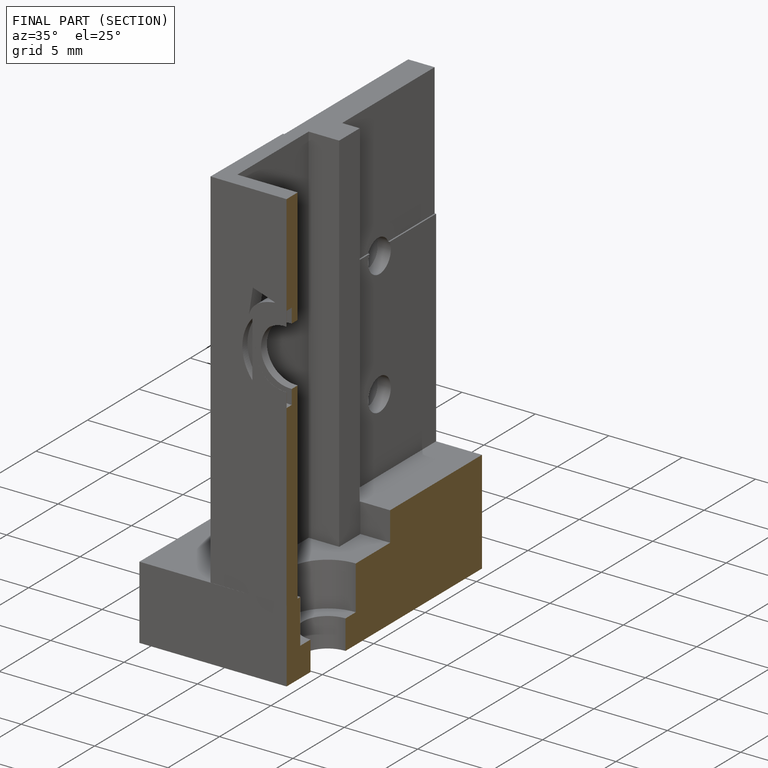
[diagram: finished part — half-section view (interior)]
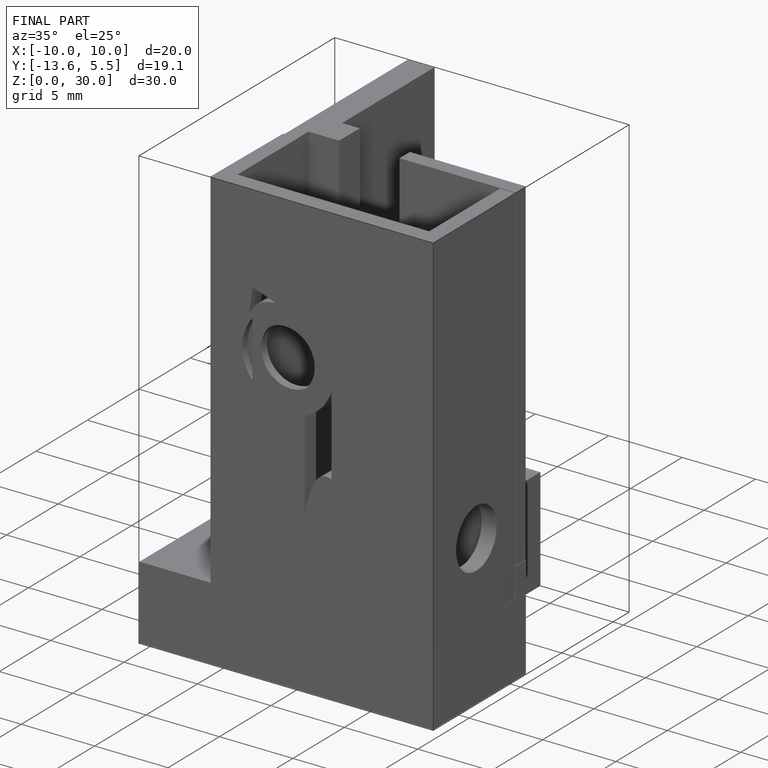
[diagram: finished part — iso view with bounding-box wireframe]
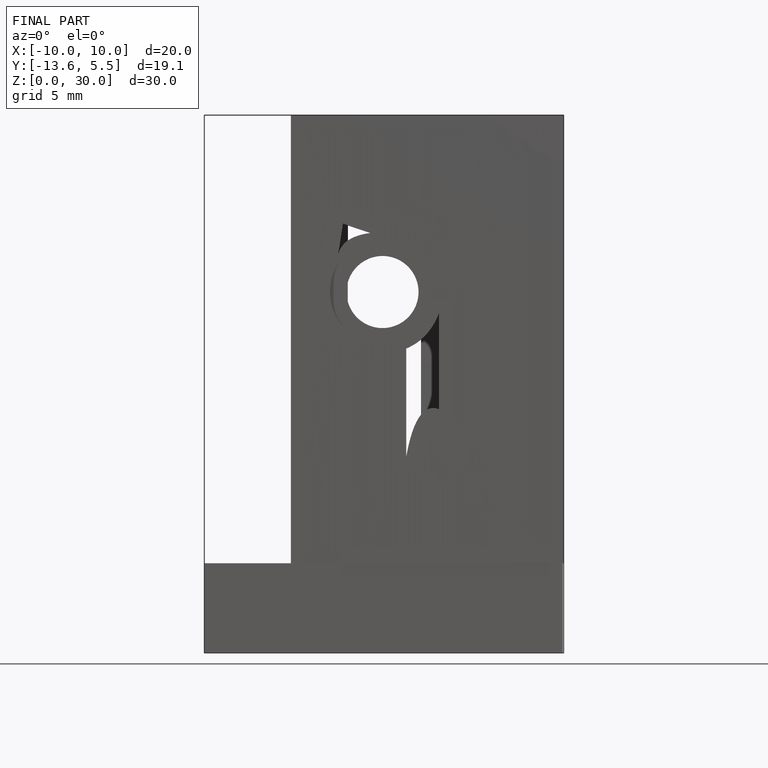
[diagram: finished part — front view with bounding-box wireframe]
